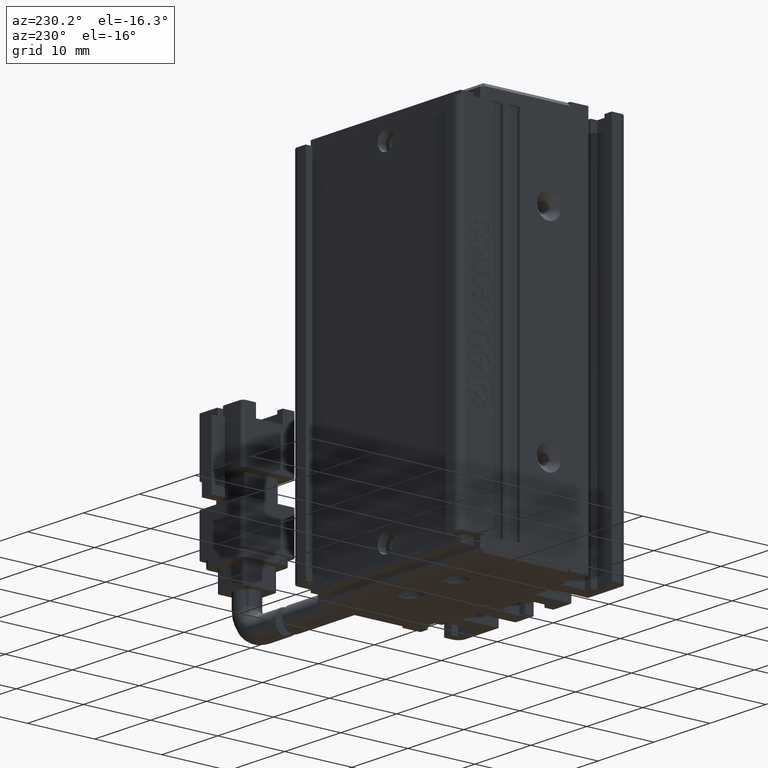
[diagram: clean part render]
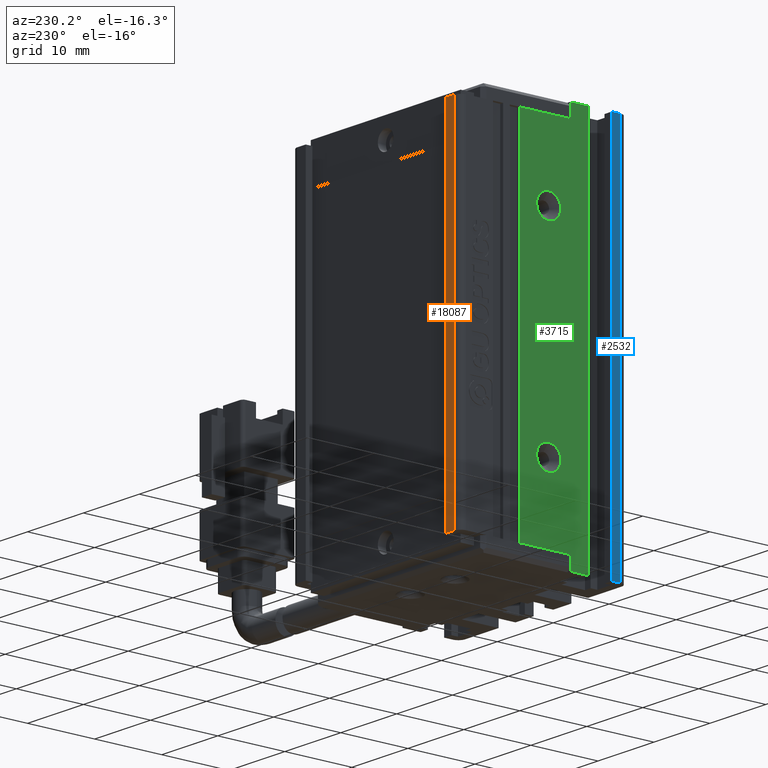
[diagram: same view with three faces highlighted in distinct colors, each labeled with its STEP entity id]
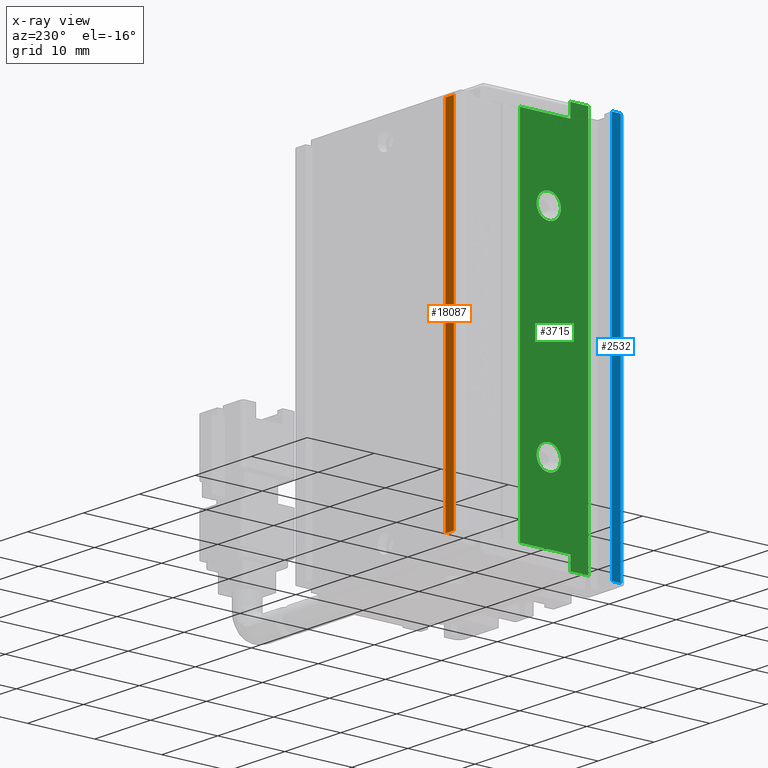
[diagram: x-ray of the same camera — body ghosted, the three highlighted faces saturated]
A machine part, auxiliary view with three faces highlighted in distinct colors.
The next image is the same camera in x-ray (body ghosted, the three faces saturated) — at least one of them is partly hidden behind the body in this view.
Their STEP definitions:

[orange] entity #18087 — the highlighted planar face has unit normal (-0, 1, 0).
#141 = VECTOR ( 'NONE', #22743, 1000.000000000000000 ) ;
#160 = AXIS2_PLACEMENT_3D ( 'NONE', #15210, #3533, #17138 ) ;
#741 = VERTEX_POINT ( 'NONE', #23390 ) ;
#798 = VECTOR ( 'NONE', #5305, 1000.000000000000000 ) ;
#1720 = CARTESIAN_POINT ( 'NONE',  ( 26.92537974683542100, 35.69594479660387500, -141.0000000000000000 ) ) ;
#2798 = VERTEX_POINT ( 'NONE', #16645 ) ;
#3533 = DIRECTION ( 'NONE',  ( -2.312964634635746600E-015, 1.000000000000000000, 0.0000000000000000000 ) ) ;
#3720 = VERTEX_POINT ( 'NONE', #1720 ) ;
#5305 = DIRECTION ( 'NONE',  ( -0.0000000000000000000, -0.0000000000000000000, -1.000000000000000000 ) ) ;
#5530 = LINE ( 'NONE', #22909, #23548 ) ;
#5573 = DIRECTION ( 'NONE',  ( -0.0000000000000000000, -0.0000000000000000000, -1.000000000000000000 ) ) ;
#6034 = VERTEX_POINT ( 'NONE', #21864 ) ;
#6178 = LINE ( 'NONE', #18810, #798 ) ;
#7047 = DIRECTION ( 'NONE',  ( -1.000000000000000000, -2.312964634635746600E-015, 0.0000000000000000000 ) ) ;
#7369 = CARTESIAN_POINT ( 'NONE',  ( 40.92537974683535400, 35.69594479660390400, -89.00000000000000000 ) ) ;
#9335 = PLANE ( 'NONE',  #160 ) ;
#9830 = VECTOR ( 'NONE', #7047, 1000.000000000000000 ) ;
#11961 = LINE ( 'NONE', #7369, #141 ) ;
#14923 = LINE ( 'NONE', #24300, #9830 ) ;
#15210 = CARTESIAN_POINT ( 'NONE',  ( 40.92537974683535400, 35.69594479660390400, -87.00000000000001400 ) ) ;
#16645 = CARTESIAN_POINT ( 'NONE',  ( 28.42537974683542100, 35.69594479660387500, -141.0000000000000000 ) ) ;
#17138 = DIRECTION ( 'NONE',  ( -1.000000000000000000, -2.312964634635746600E-015, 0.0000000000000000000 ) ) ;
#17882 = EDGE_CURVE ( 'NONE', #2798, #3720, #14923, .T. ) ;
#17981 = EDGE_CURVE ( 'NONE', #741, #3720, #6178, .T. ) ;
#18019 = EDGE_CURVE ( 'NONE', #741, #6034, #11961, .T. ) ;
#18087 = ADVANCED_FACE ( 'NONE', ( #20334 ), #9335, .T. ) ;
#18101 = EDGE_CURVE ( 'NONE', #6034, #2798, #5530, .T. ) ;
#18782 = ORIENTED_EDGE ( 'NONE', *, *, #17882, .T. ) ;
#18810 = CARTESIAN_POINT ( 'NONE',  ( 26.92537974683542100, 35.69594479660387500, -87.00000000000001400 ) ) ;
#19255 = ORIENTED_EDGE ( 'NONE', *, *, #17981, .F. ) ;
#19341 = EDGE_LOOP ( 'NONE', ( #18782, #19255, #19458, #19905 ) ) ;
#19458 = ORIENTED_EDGE ( 'NONE', *, *, #18019, .T. ) ;
#19905 = ORIENTED_EDGE ( 'NONE', *, *, #18101, .T. ) ;
#20334 = FACE_OUTER_BOUND ( 'NONE', #19341, .T. ) ;
#21864 = CARTESIAN_POINT ( 'NONE',  ( 28.42537974683542100, 35.69594479660387500, -89.00000000000000000 ) ) ;
#22743 = DIRECTION ( 'NONE',  ( 1.000000000000000000, 2.312964634635746600E-015, -0.0000000000000000000 ) ) ;
#22909 = CARTESIAN_POINT ( 'NONE',  ( 28.42537974683542100, 35.69594479660387500, -87.00000000000001400 ) ) ;
#23390 = CARTESIAN_POINT ( 'NONE',  ( 26.92537974683542100, 35.69594479660387500, -89.00000000000000000 ) ) ;
#23548 = VECTOR ( 'NONE', #5573, 1000.000000000000000 ) ;
#24300 = CARTESIAN_POINT ( 'NONE',  ( 40.92537974683535400, 35.69594479660390400, -141.0000000000000000 ) ) ;

[blue] entity #2532 — the highlighted planar face has unit normal (-1, 0, 0).
#446 = VERTEX_POINT ( 'NONE', #3630 ) ;
#1490 = LINE ( 'NONE', #9225, #12035 ) ;
#1941 = DIRECTION ( 'NONE',  ( -0.0000000000000000000, -0.0000000000000000000, -1.000000000000000000 ) ) ;
#2532 = ADVANCED_FACE ( 'NONE', ( #12971 ), #22332, .T. ) ;
#3630 = CARTESIAN_POINT ( 'NONE',  ( 25.92537974683542100, 11.69594479660387000, -143.0000000000000300 ) ) ;
#3722 = VECTOR ( 'NONE', #18359, 1000.000000000000000 ) ;
#4036 = VECTOR ( 'NONE', #14773, 1000.000000000000000 ) ;
#4363 = LINE ( 'NONE', #18272, #3722 ) ;
#6270 = EDGE_LOOP ( 'NONE', ( #10601, #10758, #11077, #11252 ) ) ;
#8809 = CARTESIAN_POINT ( 'NONE',  ( 25.92537974683541800, 12.99594479660387200, -87.00000000000001400 ) ) ;
#9225 = CARTESIAN_POINT ( 'NONE',  ( 25.92537974683542100, 11.69594479660387000, -87.00000000000001400 ) ) ;
#9898 = LINE ( 'NONE', #24254, #4036 ) ;
#10601 = ORIENTED_EDGE ( 'NONE', *, *, #17297, .T. ) ;
#10758 = ORIENTED_EDGE ( 'NONE', *, *, #17045, .T. ) ;
#11077 = ORIENTED_EDGE ( 'NONE', *, *, #17336, .T. ) ;
#11252 = ORIENTED_EDGE ( 'NONE', *, *, #17368, .F. ) ;
#11816 = CARTESIAN_POINT ( 'NONE',  ( 25.92537974683541800, 12.99594479660387200, -87.00000000000001400 ) ) ;
#12035 = VECTOR ( 'NONE', #22639, 1000.000000000000000 ) ;
#12079 = LINE ( 'NONE', #11816, #16542 ) ;
#12971 = FACE_OUTER_BOUND ( 'NONE', #6270, .T. ) ;
#14773 = DIRECTION ( 'NONE',  ( -0.0000000000000000000, -1.000000000000000000, 0.0000000000000000000 ) ) ;
#16542 = VECTOR ( 'NONE', #1941, 1000.000000000000000 ) ;
#17045 = EDGE_CURVE ( 'NONE', #24369, #23545, #12079, .T. ) ;
#17297 = EDGE_CURVE ( 'NONE', #24991, #24369, #4363, .T. ) ;
#17336 = EDGE_CURVE ( 'NONE', #23545, #446, #9898, .T. ) ;
#17368 = EDGE_CURVE ( 'NONE', #24991, #446, #1490, .T. ) ;
#17722 = DIRECTION ( 'NONE',  ( 0.0000000000000000000, 0.0000000000000000000, 1.000000000000000000 ) ) ;
#17890 = DIRECTION ( 'NONE',  ( -1.000000000000000000, 0.0000000000000000000, 0.0000000000000000000 ) ) ;
#18023 = CARTESIAN_POINT ( 'NONE',  ( 25.92537974683541800, 7.083797468354437600, -87.00000000000001400 ) ) ;
#18272 = CARTESIAN_POINT ( 'NONE',  ( 25.92537974683541800, 7.083797468354437600, -87.00000000000001400 ) ) ;
#18359 = DIRECTION ( 'NONE',  ( 0.0000000000000000000, 1.000000000000000000, -0.0000000000000000000 ) ) ;
#19719 = AXIS2_PLACEMENT_3D ( 'NONE', #18023, #17890, #17722 ) ;
#22332 = PLANE ( 'NONE',  #19719 ) ;
#22639 = DIRECTION ( 'NONE',  ( -0.0000000000000000000, -0.0000000000000000000, -1.000000000000000000 ) ) ;
#23545 = VERTEX_POINT ( 'NONE', #23715 ) ;
#23715 = CARTESIAN_POINT ( 'NONE',  ( 25.92537974683541800, 12.99594479660387200, -143.0000000000000300 ) ) ;
#24254 = CARTESIAN_POINT ( 'NONE',  ( 25.92537974683541800, 7.083797468354437600, -143.0000000000000300 ) ) ;
#24369 = VERTEX_POINT ( 'NONE', #8809 ) ;
#24834 = CARTESIAN_POINT ( 'NONE',  ( 25.92537974683542100, 11.69594479660387000, -87.00000000000001400 ) ) ;
#24991 = VERTEX_POINT ( 'NONE', #24834 ) ;

[green] entity #3715 — the highlighted planar face has unit normal (-1, 0, 0).
#59 = CARTESIAN_POINT ( 'NONE',  ( 25.92537974683541800, 26.69594479660386800, -89.00000000000000000 ) ) ;
#235 = ORIENTED_EDGE ( 'NONE', *, *, #9751, .T. ) ;
#245 = LINE ( 'NONE', #16922, #10805 ) ;
#284 = CARTESIAN_POINT ( 'NONE',  ( 25.92537974684906700, 22.39594479660386700, -98.20000000001073200 ) ) ;
#708 = CARTESIAN_POINT ( 'NONE',  ( 25.92537974683541800, 26.69594479660386800, -87.00000000000001400 ) ) ;
#908 = ORIENTED_EDGE ( 'NONE', *, *, #10950, .T. ) ;
#1276 = CARTESIAN_POINT ( 'NONE',  ( 25.92537974683541800, 16.49594479660387200, -87.00000000000001400 ) ) ;
#1381 = DIRECTION ( 'NONE',  ( 1.000000000000000000, -0.0000000000000000000, -0.0000000000000000000 ) ) ;
#1387 = CARTESIAN_POINT ( 'NONE',  ( 25.92537974684906700, 22.39594479660386700, -100.0000000000000000 ) ) ;
#1451 = CARTESIAN_POINT ( 'NONE',  ( 25.92537974679222400, 22.39594479660386700, -130.0000000000000000 ) ) ;
#1536 = VECTOR ( 'NONE', #9838, 1000.000000000000000 ) ;
#1695 = VECTOR ( 'NONE', #3910, 1000.000000000000000 ) ;
#1793 = CARTESIAN_POINT ( 'NONE',  ( 25.92537974684906700, 22.39594479660386700, -100.0000000000000000 ) ) ;
#1800 = ORIENTED_EDGE ( 'NONE', *, *, #9980, .T. ) ;
#2164 = LINE ( 'NONE', #11806, #1536 ) ;
#2441 = VECTOR ( 'NONE', #3738, 1000.000000000000000 ) ;
#2480 = ORIENTED_EDGE ( 'NONE', *, *, #4062, .T. ) ;
#3309 = EDGE_LOOP ( 'NONE', ( #9727, #10207 ) ) ;
#3406 = DIRECTION ( 'NONE',  ( 0.0000000000000000000, 0.0000000000000000000, 1.000000000000000000 ) ) ;
#3461 = CARTESIAN_POINT ( 'NONE',  ( 25.92537974684906700, 22.39594479660386700, -101.7999999999892700 ) ) ;
#3624 = EDGE_CURVE ( 'NONE', #6153, #5913, #8745, .T. ) ;
#3640 = CARTESIAN_POINT ( 'NONE',  ( 25.92537974683541800, 19.19594479660386500, -87.00000000000001400 ) ) ;
#3650 = DIRECTION ( 'NONE',  ( 0.0000000000000000000, 0.0000000000000000000, 1.000000000000000000 ) ) ;
#3669 = EDGE_CURVE ( 'NONE', #5066, #4645, #23391, .T. ) ;
#3715 = ADVANCED_FACE ( 'NONE', ( #9042, #23679, #8428 ), #9955, .T. ) ;
#3738 = DIRECTION ( 'NONE',  ( 0.0000000000000000000, 1.000000000000000000, 0.0000000000000000000 ) ) ;
#3747 = DIRECTION ( 'NONE',  ( -1.000000000000000000, 0.0000000000000000000, 0.0000000000000000000 ) ) ;
#3836 = EDGE_CURVE ( 'NONE', #12909, #13484, #19218, .T. ) ;
#3910 = DIRECTION ( 'NONE',  ( 0.0000000000000000000, 0.0000000000000000000, 1.000000000000000000 ) ) ;
#3939 = CARTESIAN_POINT ( 'NONE',  ( 25.92537974683541800, 7.083797468354437600, -87.00000000000001400 ) ) ;
#4062 = EDGE_CURVE ( 'NONE', #14058, #13787, #7039, .T. ) ;
#4645 = VERTEX_POINT ( 'NONE', #284 ) ;
#4847 = CARTESIAN_POINT ( 'NONE',  ( 25.92537974683541800, 19.19594479660386500, -87.00000000000001400 ) ) ;
#4885 = CARTESIAN_POINT ( 'NONE',  ( 25.92537974683541800, 19.19594479660386500, -141.0000000000000000 ) ) ;
#5066 = VERTEX_POINT ( 'NONE', #3461 ) ;
#5286 = LINE ( 'NONE', #24993, #25059 ) ;
#5598 = DIRECTION ( 'NONE',  ( 0.0000000000000000000, -0.0000000000000000000, -1.000000000000000000 ) ) ;
#5913 = VERTEX_POINT ( 'NONE', #8794 ) ;
#6153 = VERTEX_POINT ( 'NONE', #7503 ) ;
#7039 = LINE ( 'NONE', #1276, #1695 ) ;
#7503 = CARTESIAN_POINT ( 'NONE',  ( 25.92537974679222400, 22.39594479660386700, -131.8000000000734200 ) ) ;
#8428 = FACE_BOUND ( 'NONE', #9204, .T. ) ;
#8439 = CARTESIAN_POINT ( 'NONE',  ( 25.92537974679222400, 22.39594479660386700, -130.0000000000000000 ) ) ;
#8745 = CIRCLE ( 'NONE', #13242, 1.800000000073409500 ) ;
#8794 = CARTESIAN_POINT ( 'NONE',  ( 25.92537974679222400, 22.39594479660386700, -128.1999999999266000 ) ) ;
#9042 = FACE_OUTER_BOUND ( 'NONE', #10810, .T. ) ;
#9204 = EDGE_LOOP ( 'NONE', ( #10736, #11443 ) ) ;
#9615 = VECTOR ( 'NONE', #22027, 1000.000000000000000 ) ;
#9727 = ORIENTED_EDGE ( 'NONE', *, *, #13180, .T. ) ;
#9751 = EDGE_CURVE ( 'NONE', #13484, #16215, #13876, .T. ) ;
#9792 = CARTESIAN_POINT ( 'NONE',  ( 25.92537974683541800, 16.49594479660387200, -87.00000000000001400 ) ) ;
#9838 = DIRECTION ( 'NONE',  ( -0.0000000000000000000, -1.000000000000000000, 0.0000000000000000000 ) ) ;
#9955 = PLANE ( 'NONE',  #12132 ) ;
#9980 = EDGE_CURVE ( 'NONE', #14149, #14058, #2164, .T. ) ;
#10207 = ORIENTED_EDGE ( 'NONE', *, *, #3669, .T. ) ;
#10372 = DIRECTION ( 'NONE',  ( 0.0000000000000000000, 0.0000000000000000000, 1.000000000000000000 ) ) ;
#10736 = ORIENTED_EDGE ( 'NONE', *, *, #13444, .T. ) ;
#10805 = VECTOR ( 'NONE', #24538, 1000.000000000000000 ) ;
#10810 = EDGE_LOOP ( 'NONE', ( #13635, #14170, #15426, #16168, #235, #908, #1800, #2480 ) ) ;
#10831 = EDGE_CURVE ( 'NONE', #13787, #13096, #245, .T. ) ;
#10865 = EDGE_CURVE ( 'NONE', #13096, #17450, #13509, .T. ) ;
#10908 = EDGE_CURVE ( 'NONE', #17450, #12909, #18587, .T. ) ;
#10950 = EDGE_CURVE ( 'NONE', #16215, #14149, #5286, .T. ) ;
#11443 = ORIENTED_EDGE ( 'NONE', *, *, #3624, .T. ) ;
#11574 = CARTESIAN_POINT ( 'NONE',  ( 25.92537974683542100, 35.69594479660387500, -89.00000000000000000 ) ) ;
#11806 = CARTESIAN_POINT ( 'NONE',  ( 25.92537974683541800, 7.083797468354437600, -143.0000000000000300 ) ) ;
#12132 = AXIS2_PLACEMENT_3D ( 'NONE', #3939, #3747, #3650 ) ;
#12310 = CIRCLE ( 'NONE', #22699, 1.800000000073409500 ) ;
#12842 = CARTESIAN_POINT ( 'NONE',  ( 25.92537974683541800, 7.083797468354437600, -141.0000000000000000 ) ) ;
#12909 = VERTEX_POINT ( 'NONE', #59 ) ;
#13096 = VERTEX_POINT ( 'NONE', #4847 ) ;
#13101 = AXIS2_PLACEMENT_3D ( 'NONE', #1793, #25082, #24933 ) ;
#13180 = EDGE_CURVE ( 'NONE', #4645, #5066, #22599, .T. ) ;
#13242 = AXIS2_PLACEMENT_3D ( 'NONE', #1451, #1381, #25004 ) ;
#13444 = EDGE_CURVE ( 'NONE', #5913, #6153, #12310, .T. ) ;
#13484 = VERTEX_POINT ( 'NONE', #16266 ) ;
#13509 = LINE ( 'NONE', #3640, #23641 ) ;
#13635 = ORIENTED_EDGE ( 'NONE', *, *, #10831, .T. ) ;
#13787 = VERTEX_POINT ( 'NONE', #9792 ) ;
#13876 = LINE ( 'NONE', #12842, #18338 ) ;
#14058 = VERTEX_POINT ( 'NONE', #19033 ) ;
#14149 = VERTEX_POINT ( 'NONE', #19371 ) ;
#14170 = ORIENTED_EDGE ( 'NONE', *, *, #10865, .T. ) ;
#14794 = DIRECTION ( 'NONE',  ( -0.0000000000000000000, -1.000000000000000000, 0.0000000000000000000 ) ) ;
#15094 = DIRECTION ( 'NONE',  ( 1.000000000000000000, -0.0000000000000000000, -0.0000000000000000000 ) ) ;
#15426 = ORIENTED_EDGE ( 'NONE', *, *, #10908, .T. ) ;
#16168 = ORIENTED_EDGE ( 'NONE', *, *, #3836, .T. ) ;
#16190 = AXIS2_PLACEMENT_3D ( 'NONE', #1387, #15094, #3406 ) ;
#16215 = VERTEX_POINT ( 'NONE', #4885 ) ;
#16266 = CARTESIAN_POINT ( 'NONE',  ( 25.92537974683541800, 26.69594479660386800, -141.0000000000000000 ) ) ;
#16922 = CARTESIAN_POINT ( 'NONE',  ( 25.92537974683541800, 7.083797468354437600, -87.00000000000001400 ) ) ;
#17022 = CARTESIAN_POINT ( 'NONE',  ( 25.92537974683541800, 19.19594479660386500, -89.00000000000000000 ) ) ;
#17450 = VERTEX_POINT ( 'NONE', #17022 ) ;
#18338 = VECTOR ( 'NONE', #14794, 1000.000000000000000 ) ;
#18587 = LINE ( 'NONE', #11574, #2441 ) ;
#19033 = CARTESIAN_POINT ( 'NONE',  ( 25.92537974683541800, 16.49594479660387200, -143.0000000000000300 ) ) ;
#19218 = LINE ( 'NONE', #708, #9615 ) ;
#19371 = CARTESIAN_POINT ( 'NONE',  ( 25.92537974683541800, 19.19594479660386500, -143.0000000000000300 ) ) ;
#21296 = DIRECTION ( 'NONE',  ( 0.0000000000000000000, -0.0000000000000000000, -1.000000000000000000 ) ) ;
#21906 = DIRECTION ( 'NONE',  ( 1.000000000000000000, -0.0000000000000000000, -0.0000000000000000000 ) ) ;
#22027 = DIRECTION ( 'NONE',  ( -0.0000000000000000000, -0.0000000000000000000, -1.000000000000000000 ) ) ;
#22599 = CIRCLE ( 'NONE', #16190, 1.799999999989268400 ) ;
#22699 = AXIS2_PLACEMENT_3D ( 'NONE', #8439, #21906, #10372 ) ;
#23391 = CIRCLE ( 'NONE', #13101, 1.799999999989268400 ) ;
#23641 = VECTOR ( 'NONE', #5598, 1000.000000000000000 ) ;
#23679 = FACE_BOUND ( 'NONE', #3309, .T. ) ;
#24538 = DIRECTION ( 'NONE',  ( 0.0000000000000000000, 1.000000000000000000, -0.0000000000000000000 ) ) ;
#24933 = DIRECTION ( 'NONE',  ( 0.0000000000000000000, 0.0000000000000000000, 1.000000000000000000 ) ) ;
#24993 = CARTESIAN_POINT ( 'NONE',  ( 25.92537974683542100, 19.19594479660386500, -87.00000000000001400 ) ) ;
#25004 = DIRECTION ( 'NONE',  ( 0.0000000000000000000, 0.0000000000000000000, 1.000000000000000000 ) ) ;
#25059 = VECTOR ( 'NONE', #21296, 1000.000000000000000 ) ;
#25082 = DIRECTION ( 'NONE',  ( 1.000000000000000000, -0.0000000000000000000, -0.0000000000000000000 ) ) ;